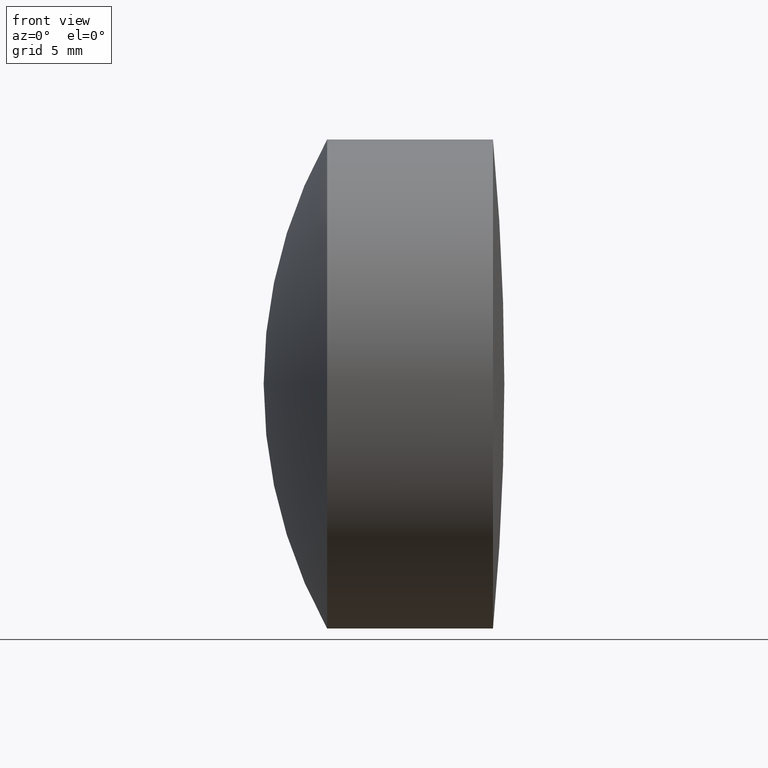
[diagram: clean part render]
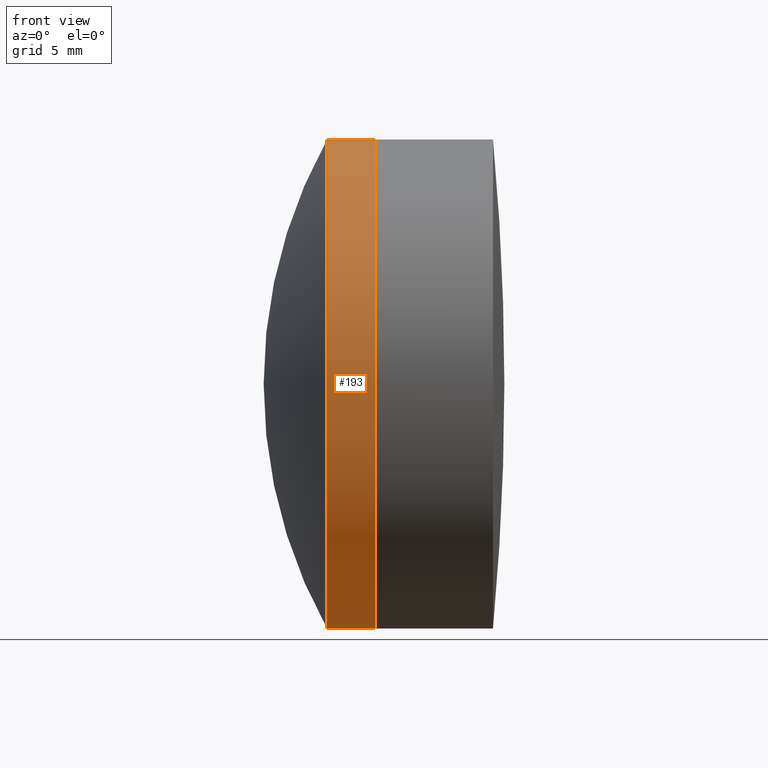
[diagram: same view with one face highlighted and labeled with its STEP entity id]
A machine part, front view. The second image highlights one B-rep face of the part: STEP entity #193.
In plain terms, the highlighted cylindrical surface (partial cylindrical patch) has radius 12.7 mm, axis along (-1, -0, -0).
Its self-contained STEP definition (entity closure, byte-faithful):
#20 = CARTESIAN_POINT ( 'NONE',  ( 279.0543419790191700, -1.555301434917138400E-015, 12.70000000000001000 ) ) ;
#41 = CYLINDRICAL_SURFACE ( 'NONE', #231, 12.70000000000000800 ) ;
#44 = CARTESIAN_POINT ( 'NONE',  ( 279.0543419790191700, 0.0000000000000000000, -12.69999999999999900 ) ) ;
#45 = ORIENTED_EDGE ( 'NONE', *, *, #284, .F. ) ;
#50 = CARTESIAN_POINT ( 'NONE',  ( 124.5233095260452400, 0.0000000000000000000, 0.0000000000000000000 ) ) ;
#51 = EDGE_LOOP ( 'NONE', ( #336, #311, #229, #45 ) ) ;
#53 = EDGE_CURVE ( 'NONE', #240, #123, #332, .T. ) ;
#72 = AXIS2_PLACEMENT_3D ( 'NONE', #317, #153, #243 ) ;
#95 = VERTEX_POINT ( 'NONE', #44 ) ;
#112 = EDGE_CURVE ( 'NONE', #123, #224, #297, .T. ) ;
#123 = VERTEX_POINT ( 'NONE', #241 ) ;
#124 = DIRECTION ( 'NONE',  ( -1.000000000000000000, -0.0000000000000000000, -0.0000000000000000000 ) ) ;
#134 = FACE_OUTER_BOUND ( 'NONE', #51, .T. ) ;
#153 = DIRECTION ( 'NONE',  ( -1.000000000000000000, -0.0000000000000000000, -0.0000000000000000000 ) ) ;
#162 = AXIS2_PLACEMENT_3D ( 'NONE', #246, #322, #184 ) ;
#175 = CARTESIAN_POINT ( 'NONE',  ( 124.5233095260452400, 0.0000000000000000000, 12.70000000000000800 ) ) ;
#184 = DIRECTION ( 'NONE',  ( 0.0000000000000000000, 0.0000000000000000000, 1.000000000000000000 ) ) ;
#193 = ADVANCED_FACE ( 'NONE', ( #134 ), #41, .T. ) ;
#200 = DIRECTION ( 'NONE',  ( 0.0000000000000000000, 0.0000000000000000000, 1.000000000000000000 ) ) ;
#224 = VERTEX_POINT ( 'NONE', #20 ) ;
#226 = LINE ( 'NONE', #334, #289 ) ;
#228 = DIRECTION ( 'NONE',  ( -1.000000000000000000, -0.0000000000000000000, -0.0000000000000000000 ) ) ;
#229 = ORIENTED_EDGE ( 'NONE', *, *, #112, .T. ) ;
#231 = AXIS2_PLACEMENT_3D ( 'NONE', #50, #261, #200 ) ;
#240 = VERTEX_POINT ( 'NONE', #326 ) ;
#241 = CARTESIAN_POINT ( 'NONE',  ( 281.5537749866366000, 0.0000000000000000000, 12.70000000000000800 ) ) ;
#243 = DIRECTION ( 'NONE',  ( 0.0000000000000000000, 0.0000000000000000000, 1.000000000000000000 ) ) ;
#246 = CARTESIAN_POINT ( 'NONE',  ( 279.0543419790191700, 0.0000000000000000000, 0.0000000000000000000 ) ) ;
#252 = VECTOR ( 'NONE', #124, 1000.000000000000000 ) ;
#256 = EDGE_CURVE ( 'NONE', #240, #95, #226, .T. ) ;
#260 = CIRCLE ( 'NONE', #162, 12.70000000000000800 ) ;
#261 = DIRECTION ( 'NONE',  ( -1.000000000000000000, -0.0000000000000000000, -0.0000000000000000000 ) ) ;
#284 = EDGE_CURVE ( 'NONE', #95, #224, #260, .T. ) ;
#289 = VECTOR ( 'NONE', #228, 1000.000000000000000 ) ;
#297 = LINE ( 'NONE', #175, #252 ) ;
#311 = ORIENTED_EDGE ( 'NONE', *, *, #53, .T. ) ;
#317 = CARTESIAN_POINT ( 'NONE',  ( 281.5537749866366000, 0.0000000000000000000, 0.0000000000000000000 ) ) ;
#322 = DIRECTION ( 'NONE',  ( -1.000000000000000000, -0.0000000000000000000, -0.0000000000000000000 ) ) ;
#326 = CARTESIAN_POINT ( 'NONE',  ( 281.5537749866366000, 1.555301434917139400E-015, -12.70000000000000800 ) ) ;
#332 = CIRCLE ( 'NONE', #72, 12.70000000000000800 ) ;
#334 = CARTESIAN_POINT ( 'NONE',  ( 124.5233095260452400, 1.555301434917139400E-015, -12.70000000000000800 ) ) ;
#336 = ORIENTED_EDGE ( 'NONE', *, *, #256, .F. ) ;